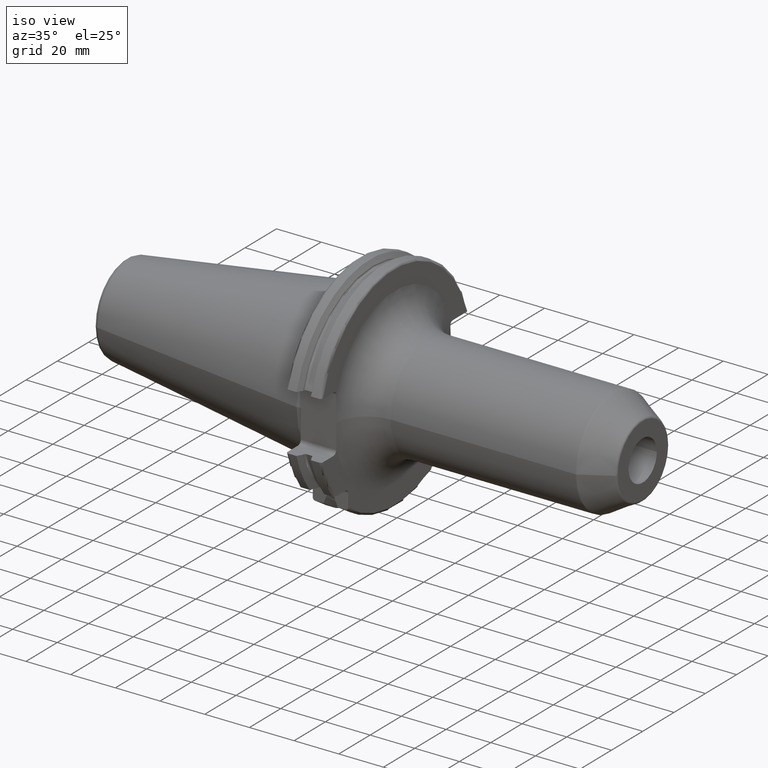
[diagram: clean part render]
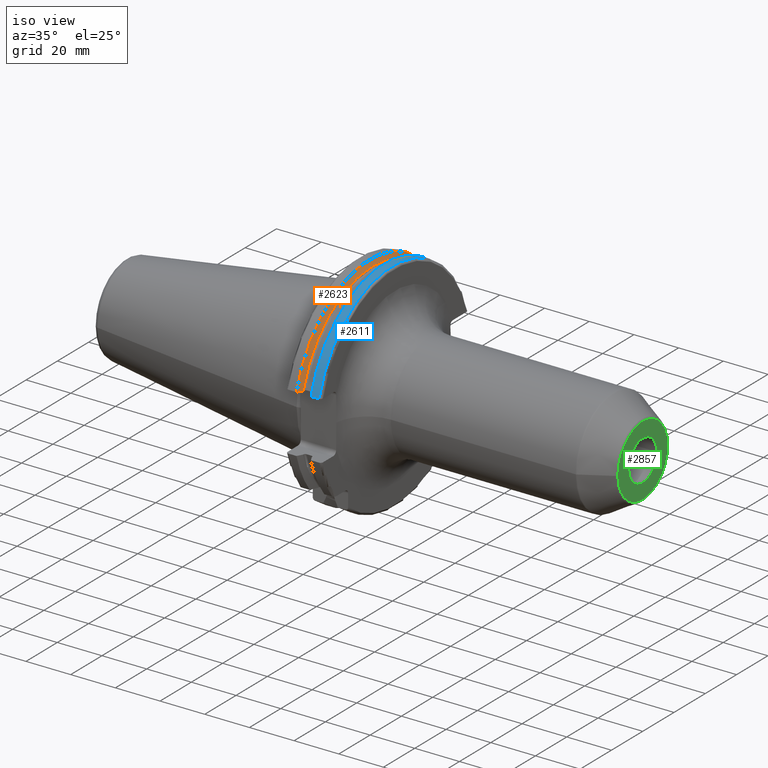
[diagram: same view with three faces highlighted in distinct colors, each labeled with its STEP entity id]
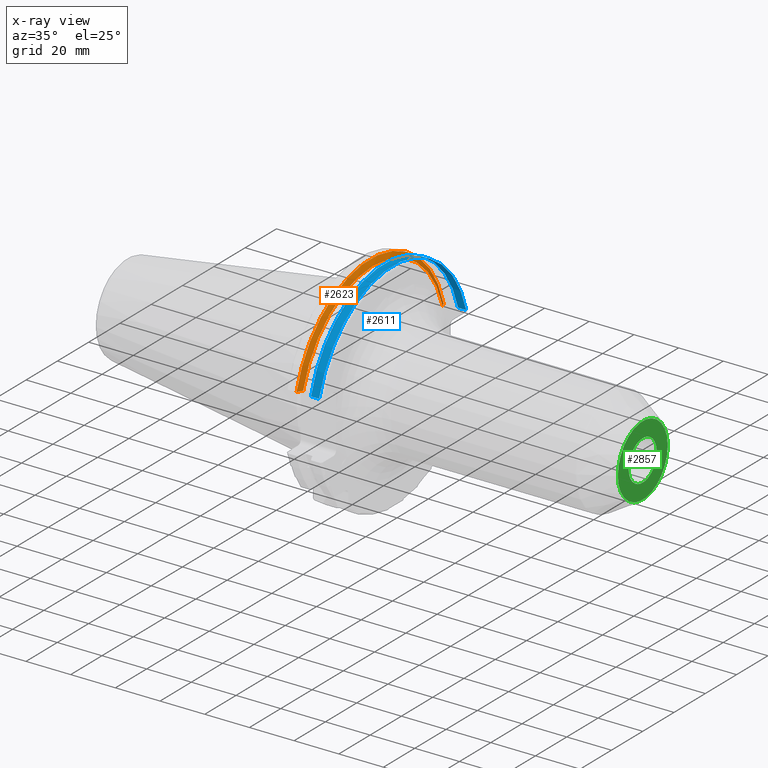
[diagram: x-ray of the same camera — body ghosted, the three highlighted faces saturated]
A machine part, iso view with three faces highlighted in distinct colors.
The next image is the same camera in x-ray (body ghosted, the three faces saturated) — at least one of them is partly hidden behind the body in this view.
Their STEP definitions:

[orange] entity #2623 — the highlighted conical surface has half-angle 60 deg.
#598=CARTESIAN_POINT('',(9.2625E0,0.E0,0.E0));
#599=DIRECTION('',(1.E0,0.E0,0.E0));
#600=DIRECTION('',(0.E0,9.606411165078E-1,2.777924499957E-1));
#601=AXIS2_PLACEMENT_3D('',#598,#599,#600);
#758=CARTESIAN_POINT('',(7.934621614173E0,0.E0,0.E0));
#759=DIRECTION('',(1.E0,0.E0,0.E0));
#760=DIRECTION('',(0.E0,9.643354064066E-1,2.646832521159E-1));
#761=AXIS2_PLACEMENT_3D('',#758,#759,#760);
#785=CARTESIAN_POINT('',(7.934621614173E0,4.699929686974E1,1.29E1));
#786=CARTESIAN_POINT('',(8.085480915039E0,4.672833723043E1,1.29E1));
#787=CARTESIAN_POINT('',(8.384988643814E0,4.619006057422E1,1.29E1));
#788=CARTESIAN_POINT('',(8.827579780447E0,4.539363402665E1,1.29E1));
#789=CARTESIAN_POINT('',(9.118260754177E0,4.486988275438E1,1.29E1));
#790=CARTESIAN_POINT('',(9.2625E0,4.460981716077E1,1.29E1));
#792=CARTESIAN_POINT('',(9.2625E0,-4.460981716077E1,1.29E1));
#793=CARTESIAN_POINT('',(9.118283773553E0,-4.486984125009E1,1.29E1));
#794=CARTESIAN_POINT('',(8.827633549554E0,-4.539353719098E1,1.29E1));
#795=CARTESIAN_POINT('',(8.385043355543E0,-4.618996220278E1,1.29E1));
#796=CARTESIAN_POINT('',(8.085504386120E0,-4.672829507383E1,1.29E1));
#797=CARTESIAN_POINT('',(7.934621614173E0,-4.699929686974E1,1.29E1));
#1520=CARTESIAN_POINT('',(9.2625E0,4.460981716077E1,1.29E1));
#1522=VERTEX_POINT('',#1520);
#1532=CARTESIAN_POINT('',(9.2625E0,-4.460981716077E1,1.29E1));
#1534=VERTEX_POINT('',#1532);
#1558=VERTEX_POINT('',#785);
#1559=VERTEX_POINT('',#797);
#2612=CARTESIAN_POINT('',(8.598560807087E0,0.E0,0.E0));
#2613=DIRECTION('',(-1.E0,0.E0,0.E0));
#2614=DIRECTION('',(0.E0,1.E0,0.E0));
#2615=AXIS2_PLACEMENT_3D('',#2612,#2613,#2614);
#2616=CONICAL_SURFACE('',#2615,4.758752358474E1,6.E1);
#2617=ORIENTED_EDGE('',*,*,#2055,.T.);
#2618=ORIENTED_EDGE('',*,*,#2462,.T.);
#2619=ORIENTED_EDGE('',*,*,#2093,.T.);
#2620=ORIENTED_EDGE('',*,*,#2592,.F.);
#2621=EDGE_LOOP('',(#2617,#2618,#2619,#2620));
#2622=FACE_OUTER_BOUND('',#2621,.F.);
#2623=ADVANCED_FACE('',(#2622),#2616,.T.);
#602=CIRCLE('',#601,4.643754716948E1);
#762=CIRCLE('',#761,4.87375E1);
#791=B_SPLINE_CURVE_WITH_KNOTS('',3,(#785,#786,#787,#788,#789,#790),
.UNSPECIFIED.,.F.,.F.,(4,1,1,4),(0.E0,3.333333333333E-1,6.666666666667E-1,1.E0),
.UNSPECIFIED.);
#798=B_SPLINE_CURVE_WITH_KNOTS('',3,(#792,#793,#794,#795,#796,#797),
.UNSPECIFIED.,.F.,.F.,(4,1,1,4),(0.E0,3.333333333333E-1,6.666666666667E-1,1.E0),
.UNSPECIFIED.);
#2055=EDGE_CURVE('',#1558,#1522,#791,.T.);
#2093=EDGE_CURVE('',#1534,#1559,#798,.T.);
#2462=EDGE_CURVE('',#1522,#1534,#602,.T.);
#2592=EDGE_CURVE('',#1558,#1559,#762,.T.);

[blue] entity #2611 — the highlighted cylindrical surface (partial cylindrical patch) has radius 48.7375 mm, axis along (1, 0, 0).
#735=CARTESIAN_POINT('',(1.441537838583E1,4.699929686974E1,1.29E1));
#747=CARTESIAN_POINT('',(1.441537838583E1,-4.699929686974E1,1.29E1));
#767=DIRECTION('',(1.E0,0.E0,0.E0));
#768=VECTOR('',#767,3.634621614173E0);
#769=CARTESIAN_POINT('',(1.441537838583E1,4.699929686974E1,1.29E1));
#770=LINE('',#769,#768);
#771=CARTESIAN_POINT('',(1.805E1,0.E0,0.E0));
#772=DIRECTION('',(1.E0,0.E0,0.E0));
#773=DIRECTION('',(0.E0,9.643354064066E-1,2.646832521159E-1));
#774=AXIS2_PLACEMENT_3D('',#771,#772,#773);
#776=DIRECTION('',(1.E0,0.E0,0.E0));
#777=VECTOR('',#776,3.634621614173E0);
#778=CARTESIAN_POINT('',(1.441537838583E1,-4.699929686974E1,1.29E1));
#779=LINE('',#778,#777);
#780=CARTESIAN_POINT('',(1.441537838583E1,0.E0,0.E0));
#781=DIRECTION('',(1.E0,0.E0,0.E0));
#782=DIRECTION('',(0.E0,9.643354064066E-1,2.646832521159E-1));
#783=AXIS2_PLACEMENT_3D('',#780,#781,#782);
#1556=VERTEX_POINT('',#735);
#1557=VERTEX_POINT('',#747);
#1572=CARTESIAN_POINT('',(1.805E1,4.699929686974E1,1.29E1));
#1573=VERTEX_POINT('',#1572);
#1576=CARTESIAN_POINT('',(1.805E1,-4.699929686974E1,1.29E1));
#1577=VERTEX_POINT('',#1576);
#2600=CARTESIAN_POINT('',(-1.076325E2,0.E0,0.E0));
#2601=DIRECTION('',(1.E0,0.E0,0.E0));
#2602=DIRECTION('',(0.E0,-1.E0,0.E0));
#2603=AXIS2_PLACEMENT_3D('',#2600,#2601,#2602);
#2604=CYLINDRICAL_SURFACE('',#2603,4.87375E1);
#2605=ORIENTED_EDGE('',*,*,#2041,.T.);
#2606=ORIENTED_EDGE('',*,*,#2075,.T.);
#2607=ORIENTED_EDGE('',*,*,#2107,.F.);
#2608=ORIENTED_EDGE('',*,*,#2579,.F.);
#2609=EDGE_LOOP('',(#2605,#2606,#2607,#2608));
#2610=FACE_OUTER_BOUND('',#2609,.F.);
#2611=ADVANCED_FACE('',(#2610),#2604,.T.);
#775=CIRCLE('',#774,4.87375E1);
#784=CIRCLE('',#783,4.87375E1);
#2041=EDGE_CURVE('',#1556,#1573,#770,.T.);
#2075=EDGE_CURVE('',#1573,#1577,#775,.T.);
#2107=EDGE_CURVE('',#1557,#1577,#779,.T.);
#2579=EDGE_CURVE('',#1556,#1557,#784,.T.);

[green] entity #2857 — the highlighted planar face has unit normal (1, 0, 0).
#1128=CARTESIAN_POINT('',(1.3E2,0.E0,0.E0));
#1129=DIRECTION('',(1.E0,0.E0,0.E0));
#1130=DIRECTION('',(0.E0,1.E0,0.E0));
#1131=AXIS2_PLACEMENT_3D('',#1128,#1129,#1130);
#1133=CARTESIAN_POINT('',(1.3E2,0.E0,0.E0));
#1134=DIRECTION('',(1.E0,0.E0,0.E0));
#1135=DIRECTION('',(0.E0,-1.E0,0.E0));
#1136=AXIS2_PLACEMENT_3D('',#1133,#1134,#1135);
#1138=CARTESIAN_POINT('',(1.3E2,0.E0,0.E0));
#1139=DIRECTION('',(-1.E0,0.E0,0.E0));
#1140=DIRECTION('',(0.E0,1.E0,0.E0));
#1141=AXIS2_PLACEMENT_3D('',#1138,#1139,#1140);
#1143=CARTESIAN_POINT('',(1.3E2,0.E0,0.E0));
#1144=DIRECTION('',(-1.E0,0.E0,0.E0));
#1145=DIRECTION('',(0.E0,-1.E0,0.E0));
#1146=AXIS2_PLACEMENT_3D('',#1143,#1144,#1145);
#1661=CARTESIAN_POINT('',(1.3E2,-9.E0,0.E0));
#1662=VERTEX_POINT('',#1661);
#1671=CARTESIAN_POINT('',(1.3E2,9.E0,0.E0));
#1672=VERTEX_POINT('',#1671);
#1697=CARTESIAN_POINT('',(1.3E2,1.591709623135E1,4.271347892428E-14));
#1698=CARTESIAN_POINT('',(1.3E2,-1.591709623135E1,-3.759415033094E-14));
#1699=VERTEX_POINT('',#1697);
#1700=VERTEX_POINT('',#1698);
#2842=CARTESIAN_POINT('',(1.3E2,0.E0,0.E0));
#2843=DIRECTION('',(1.E0,0.E0,0.E0));
#2844=DIRECTION('',(0.E0,-1.E0,0.E0));
#2845=AXIS2_PLACEMENT_3D('',#2842,#2843,#2844);
#2846=PLANE('',#2845);
#2848=ORIENTED_EDGE('',*,*,#2847,.T.);
#2850=ORIENTED_EDGE('',*,*,#2849,.T.);
#2851=EDGE_LOOP('',(#2848,#2850));
#2852=FACE_OUTER_BOUND('',#2851,.F.);
#2853=ORIENTED_EDGE('',*,*,#2826,.T.);
#2854=ORIENTED_EDGE('',*,*,#2805,.T.);
#2855=EDGE_LOOP('',(#2853,#2854));
#2856=FACE_BOUND('',#2855,.F.);
#2857=ADVANCED_FACE('',(#2852,#2856),#2846,.T.);
#1132=CIRCLE('',#1131,9.E0);
#1137=CIRCLE('',#1136,9.E0);
#1142=CIRCLE('',#1141,1.591709623135E1);
#1147=CIRCLE('',#1146,1.591709623135E1);
#2805=EDGE_CURVE('',#1662,#1672,#1137,.T.);
#2826=EDGE_CURVE('',#1672,#1662,#1132,.T.);
#2847=EDGE_CURVE('',#1699,#1700,#1142,.T.);
#2849=EDGE_CURVE('',#1700,#1699,#1147,.T.);